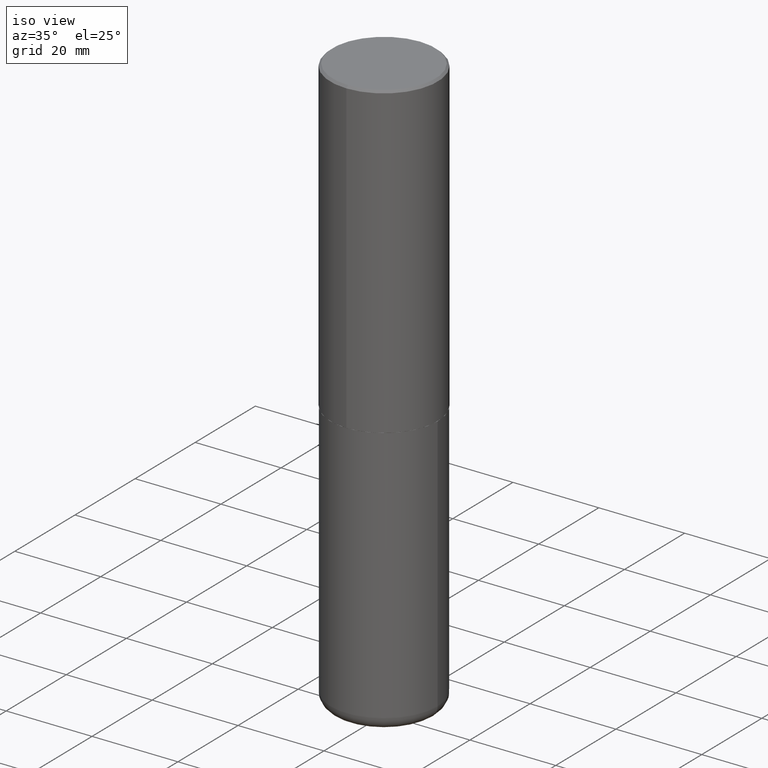
[diagram: clean part render]
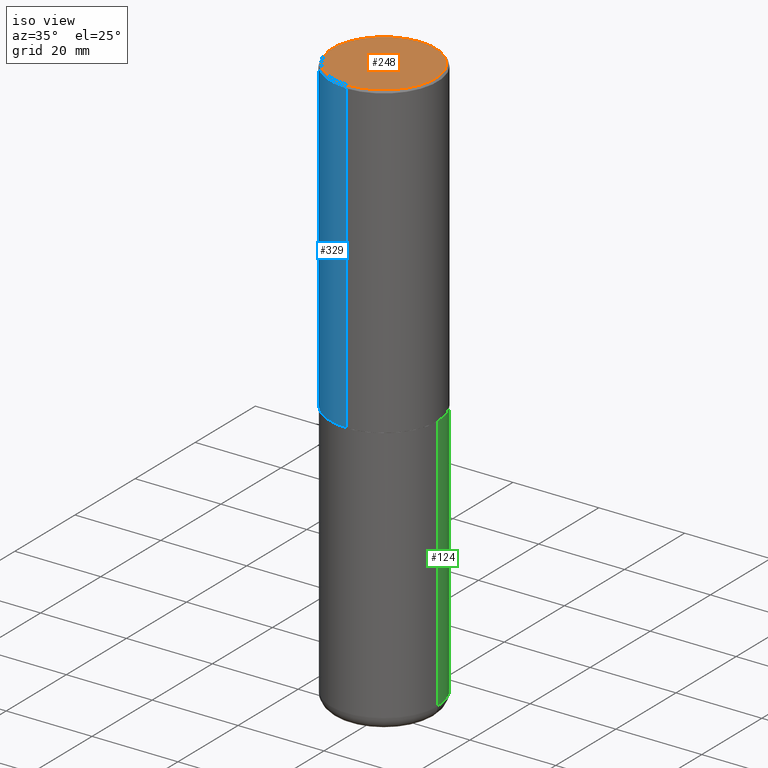
[diagram: same view with three faces highlighted in distinct colors, each labeled with its STEP entity id]
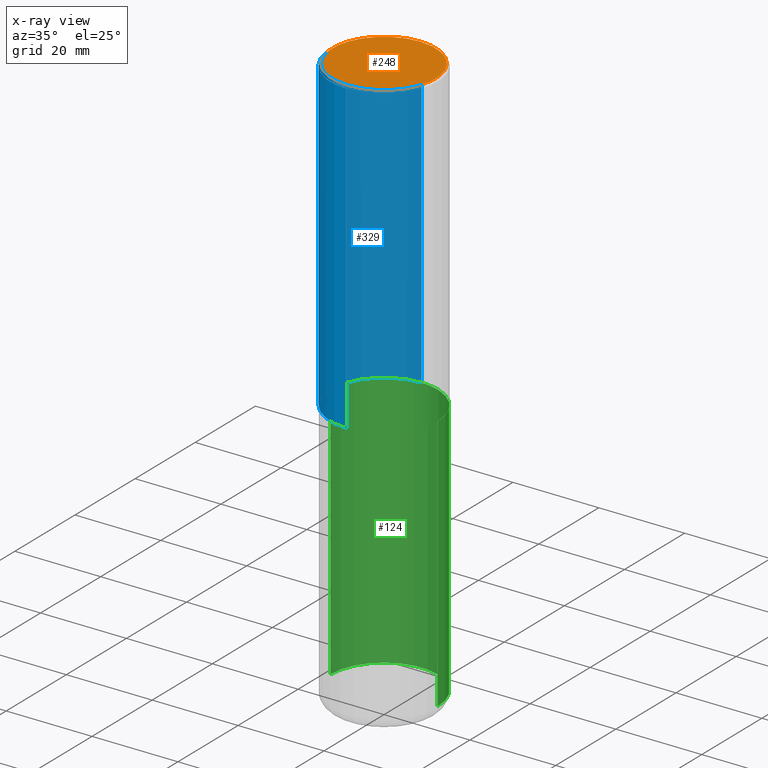
[diagram: x-ray of the same camera — body ghosted, the three highlighted faces saturated]
A machine part, iso view with three faces highlighted in distinct colors.
The next image is the same camera in x-ray (body ghosted, the three faces saturated) — at least one of them is partly hidden behind the body in this view.
Their STEP definitions:

[orange] entity #248 — the highlighted planar face has unit normal (0, -0, -1).
#63 = DIRECTION ( 'NONE',  ( -2.445229172240879899E-29, 3.491824508290438219E-15, 1.000000000000000000 ) ) ;
#90 = VERTEX_POINT ( 'NONE', #343 ) ;
#128 = CIRCLE ( 'NONE', #418, 0.4721500000000000696 ) ;
#138 = CARTESIAN_POINT ( 'NONE',  ( -3.307789109625543325E-15, -0.4721500000000000696, 1.482354981929953537E-15 ) ) ;
#157 = CARTESIAN_POINT ( 'NONE',  ( 4.066659649933121937E-45, -5.807251931114062973E-31, -1.663099596593768543E-16 ) ) ;
#158 = PLANE ( 'NONE',  #297 ) ;
#193 = CARTESIAN_POINT ( 'NONE',  ( 4.066659649933121937E-45, -5.807251931114062973E-31, -1.663099596593768543E-16 ) ) ;
#214 = EDGE_CURVE ( 'NONE', #349, #90, #128, .T. ) ;
#227 = DIRECTION ( 'NONE',  ( 2.445229172240879339E-29, -3.491824508290438613E-15, -1.000000000000000000 ) ) ;
#244 = EDGE_CURVE ( 'NONE', #90, #349, #285, .T. ) ;
#248 = ADVANCED_FACE ( 'NONE', ( #325 ), #158, .F. ) ;
#252 = AXIS2_PLACEMENT_3D ( 'NONE', #157, #292, #392 ) ;
#285 = CIRCLE ( 'NONE', #252, 0.4721500000000000696 ) ;
#292 = DIRECTION ( 'NONE',  ( -2.445229172240879899E-29, 3.491824508290438219E-15, 1.000000000000000000 ) ) ;
#297 = AXIS2_PLACEMENT_3D ( 'NONE', #400, #227, #357 ) ;
#325 = FACE_OUTER_BOUND ( 'NONE', #363, .T. ) ;
#333 = DIRECTION ( 'NONE',  ( -6.982962677686264344E-15, -1.000000000000000000, 3.491824508290437824E-15 ) ) ;
#343 = CARTESIAN_POINT ( 'NONE',  ( 3.366835455046433267E-15, 0.4721500000000000696, -1.814974901248707542E-15 ) ) ;
#349 = VERTEX_POINT ( 'NONE', #138 ) ;
#357 = DIRECTION ( 'NONE',  ( 6.982962677686265922E-15, 1.000000000000000000, -3.491824508290438613E-15 ) ) ;
#363 = EDGE_LOOP ( 'NONE', ( #365, #404 ) ) ;
#365 = ORIENTED_EDGE ( 'NONE', *, *, #244, .T. ) ;
#392 = DIRECTION ( 'NONE',  ( -6.982962677686264344E-15, -1.000000000000000000, 3.491824508290437824E-15 ) ) ;
#400 = CARTESIAN_POINT ( 'NONE',  ( 3.297005828269570364E-15, 0.4721500000000000696, -1.731819921419018991E-15 ) ) ;
#404 = ORIENTED_EDGE ( 'NONE', *, *, #214, .T. ) ;
#418 = AXIS2_PLACEMENT_3D ( 'NONE', #193, #63, #333 ) ;

[blue] entity #329 — the highlighted cylindrical surface (partial cylindrical patch) has radius 12.5006 mm, axis along (-0, 0, 1).
#2 = CARTESIAN_POINT ( 'NONE',  ( 6.929045905378983914E-29, -9.894783109142616722E-15, -2.833700000000000330 ) ) ;
#3 = ORIENTED_EDGE ( 'NONE', *, *, #220, .F. ) ;
#32 = EDGE_CURVE ( 'NONE', #33, #401, #364, .T. ) ;
#33 = VERTEX_POINT ( 'NONE', #87 ) ;
#34 = VERTEX_POINT ( 'NONE', #197 ) ;
#42 = DIRECTION ( 'NONE',  ( -2.445229172240879899E-29, 3.491824508290438219E-15, 1.000000000000000000 ) ) ;
#61 = DIRECTION ( 'NONE',  ( -2.445229172240879899E-29, 3.491824508290438613E-15, 1.000000000000000000 ) ) ;
#73 = CARTESIAN_POINT ( 'NONE',  ( 0.000000000000000000, 0.000000000000000000, 0.000000000000000000 ) ) ;
#76 = CYLINDRICAL_SURFACE ( 'NONE', #188, 0.4921500000000000874 ) ;
#77 = CARTESIAN_POINT ( 'NONE',  ( 4.890458344481786073E-31, -6.983649016580912824E-17, -0.02000000000000010797 ) ) ;
#87 = CARTESIAN_POINT ( 'NONE',  ( -3.436665081823228329E-15, -0.4921500000000101904, -2.833699999999998997 ) ) ;
#95 = DIRECTION ( 'NONE',  ( -6.982962677686265922E-15, -1.000000000000000000, 3.330506545156063891E-15 ) ) ;
#100 = ORIENTED_EDGE ( 'NONE', *, *, #258, .T. ) ;
#103 = DIRECTION ( 'NONE',  ( -2.445229172240879899E-29, 3.491824508290438613E-15, 1.000000000000000000 ) ) ;
#104 = VECTOR ( 'NONE', #103, 39.37007874015748143 ) ;
#118 = DIRECTION ( 'NONE',  ( -2.445229172240879899E-29, 3.491824508290438219E-15, 1.000000000000000000 ) ) ;
#136 = EDGE_CURVE ( 'NONE', #167, #401, #207, .T. ) ;
#154 = ORIENTED_EDGE ( 'NONE', *, *, #136, .F. ) ;
#167 = VERTEX_POINT ( 'NONE', #221 ) ;
#184 = AXIS2_PLACEMENT_3D ( 'NONE', #77, #118, #337 ) ;
#188 = AXIS2_PLACEMENT_3D ( 'NONE', #73, #42, #279 ) ;
#197 = CARTESIAN_POINT ( 'NONE',  ( 3.496936074043369184E-15, 0.4921499999999904285, -2.833700000000002106 ) ) ;
#205 = CARTESIAN_POINT ( 'NONE',  ( -3.376394089603258262E-15, -0.4921500000000000319, -0.01999999999999838712 ) ) ;
#207 = CIRCLE ( 'NONE', #184, 0.4921499999999999764 ) ;
#220 = EDGE_CURVE ( 'NONE', #34, #167, #231, .T. ) ;
#221 = CARTESIAN_POINT ( 'NONE',  ( 3.436665081823296171E-15, 0.4921499999999999209, -0.02000000000000182535 ) ) ;
#231 = LINE ( 'NONE', #327, #322 ) ;
#246 = FACE_OUTER_BOUND ( 'NONE', #387, .T. ) ;
#258 = EDGE_CURVE ( 'NONE', #34, #33, #346, .T. ) ;
#279 = DIRECTION ( 'NONE',  ( -6.982962677686265922E-15, -1.000000000000000000, 3.491824508290438219E-15 ) ) ;
#288 = ORIENTED_EDGE ( 'NONE', *, *, #32, .T. ) ;
#322 = VECTOR ( 'NONE', #61, 39.37007874015748143 ) ;
#327 = CARTESIAN_POINT ( 'NONE',  ( 3.496936074043333291E-15, 0.4921500000000000874, -1.718501431755139545E-15 ) ) ;
#329 = ADVANCED_FACE ( 'NONE', ( #246 ), #76, .T. ) ;
#337 = DIRECTION ( 'NONE',  ( -6.982962677686265922E-15, -1.000000000000000000, 3.495297233588267464E-15 ) ) ;
#346 = CIRCLE ( 'NONE', #414, 0.4921500000000003094 ) ;
#364 = LINE ( 'NONE', #373, #104 ) ;
#373 = CARTESIAN_POINT ( 'NONE',  ( -3.436665081823296565E-15, -0.4921500000000000874, 1.718501431755139545E-15 ) ) ;
#387 = EDGE_LOOP ( 'NONE', ( #3, #100, #288, #154 ) ) ;
#397 = DIRECTION ( 'NONE',  ( -2.445229172240879899E-29, 3.491824508290438219E-15, 1.000000000000000000 ) ) ;
#401 = VERTEX_POINT ( 'NONE', #205 ) ;
#414 = AXIS2_PLACEMENT_3D ( 'NONE', #2, #397, #95 ) ;

[green] entity #124 — the highlighted cylindrical surface (partial cylindrical patch) has radius 12.5006 mm, axis along (-0, 0, 1).
#7 = VERTEX_POINT ( 'NONE', #270 ) ;
#10 = ORIENTED_EDGE ( 'NONE', *, *, #351, .F. ) ;
#19 = DIRECTION ( 'NONE',  ( 1.000000000000000000, -6.982962677686265922E-15, 4.876176775795935793E-29 ) ) ;
#21 = CARTESIAN_POINT ( 'NONE',  ( 6.932170424893007423E-29, -9.897302151218665974E-15, -2.834700000000000220 ) ) ;
#35 = CIRCLE ( 'NONE', #304, 0.4921499999999999764 ) ;
#36 = CARTESIAN_POINT ( 'NONE',  ( 0.4921499999999999764, -3.436665081823295777E-15, 2.399810400207969603E-29 ) ) ;
#39 = CARTESIAN_POINT ( 'NONE',  ( 0.4921499999999999764, -1.333396723304196175E-14, -2.834700000000000220 ) ) ;
#40 = VERTEX_POINT ( 'NONE', #39 ) ;
#43 = CARTESIAN_POINT ( 'NONE',  ( 0.000000000000000000, 0.000000000000000000, 0.000000000000000000 ) ) ;
#45 = AXIS2_PLACEMENT_3D ( 'NONE', #43, #375, #19 ) ;
#65 = CARTESIAN_POINT ( 'NONE',  ( 1.270885683886353718E-28, -1.814487936983394718E-14, -5.196900000000000297 ) ) ;
#66 = ORIENTED_EDGE ( 'NONE', *, *, #406, .T. ) ;
#93 = VECTOR ( 'NONE', #164, 39.37007874015748143 ) ;
#96 = VERTEX_POINT ( 'NONE', #413 ) ;
#124 = ADVANCED_FACE ( 'NONE', ( #278 ), #382, .T. ) ;
#127 = VERTEX_POINT ( 'NONE', #141 ) ;
#129 = LINE ( 'NONE', #36, #93 ) ;
#141 = CARTESIAN_POINT ( 'NONE',  ( 0.4921499999999999764, -2.158154445165724138E-14, -5.196900000000000297 ) ) ;
#142 = VECTOR ( 'NONE', #277, 39.37007874015748143 ) ;
#161 = DIRECTION ( 'NONE',  ( -2.445468806185136597E-29, 3.491481338843145583E-15, 1.000000000000000000 ) ) ;
#164 = DIRECTION ( 'NONE',  ( -2.445468806185136877E-29, 3.491481338843145188E-15, 1.000000000000000000 ) ) ;
#177 = DIRECTION ( 'NONE',  ( -2.445468806185136597E-29, 3.491481338843145583E-15, 1.000000000000000000 ) ) ;
#211 = CARTESIAN_POINT ( 'NONE',  ( -0.4921499999999999764, 3.496936074043332897E-15, -2.420853904668951509E-29 ) ) ;
#228 = EDGE_LOOP ( 'NONE', ( #334, #66, #10, #266 ) ) ;
#259 = CIRCLE ( 'NONE', #350, 0.4921499999999999764 ) ;
#261 = EDGE_CURVE ( 'NONE', #127, #7, #259, .T. ) ;
#266 = ORIENTED_EDGE ( 'NONE', *, *, #282, .F. ) ;
#270 = CARTESIAN_POINT ( 'NONE',  ( -0.4921499999999999764, -1.464794329579061349E-14, -5.196900000000000297 ) ) ;
#277 = DIRECTION ( 'NONE',  ( -2.445468806185136877E-29, 3.491481338843145188E-15, 1.000000000000000000 ) ) ;
#278 = FACE_OUTER_BOUND ( 'NONE', #228, .T. ) ;
#282 = EDGE_CURVE ( 'NONE', #127, #40, #129, .T. ) ;
#295 = DIRECTION ( 'NONE',  ( 1.000000000000000000, -6.982962677686265922E-15, 0.000000000000000000 ) ) ;
#304 = AXIS2_PLACEMENT_3D ( 'NONE', #21, #177, #379 ) ;
#334 = ORIENTED_EDGE ( 'NONE', *, *, #261, .T. ) ;
#338 = LINE ( 'NONE', #211, #142 ) ;
#350 = AXIS2_PLACEMENT_3D ( 'NONE', #65, #161, #295 ) ;
#351 = EDGE_CURVE ( 'NONE', #40, #96, #35, .T. ) ;
#375 = DIRECTION ( 'NONE',  ( -2.445468806185136597E-29, 3.491481338843145583E-15, 1.000000000000000000 ) ) ;
#379 = DIRECTION ( 'NONE',  ( 1.000000000000000000, -6.982962677686265922E-15, 0.000000000000000000 ) ) ;
#382 = CYLINDRICAL_SURFACE ( 'NONE', #45, 0.4921499999999999764 ) ;
#406 = EDGE_CURVE ( 'NONE', #7, #96, #338, .T. ) ;
#413 = CARTESIAN_POINT ( 'NONE',  ( -0.4921499999999999764, -1.052415468648297289E-14, -2.834700000000000220 ) ) ;